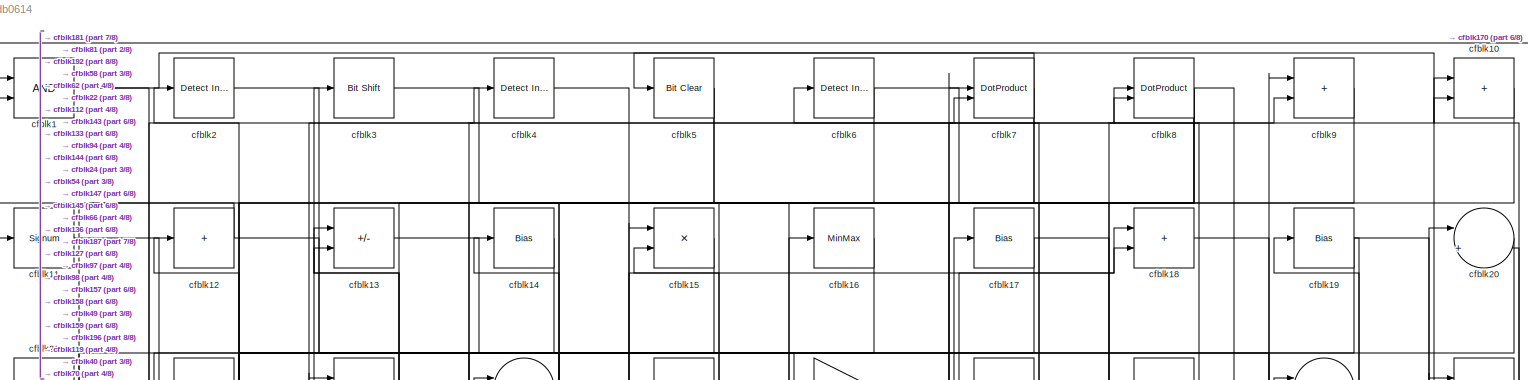
[diagram: root canvas - part 1/8, full width, top band]
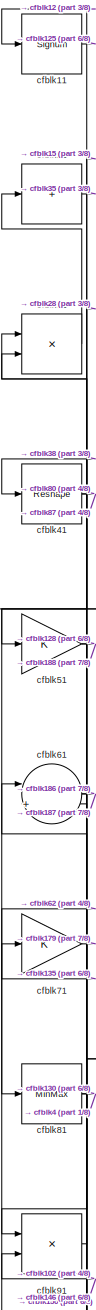
[diagram: root canvas - part 2/8, top left region]
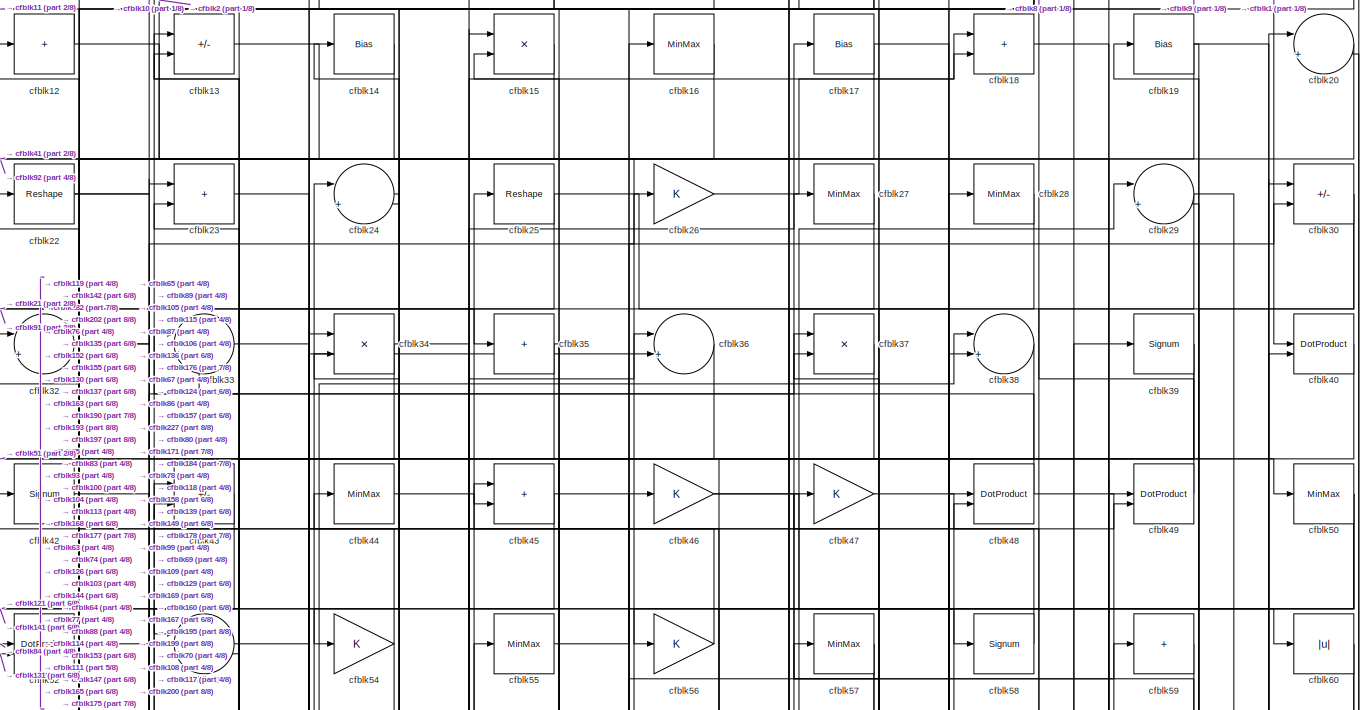
[diagram: root canvas - part 3/8, full width, top band]
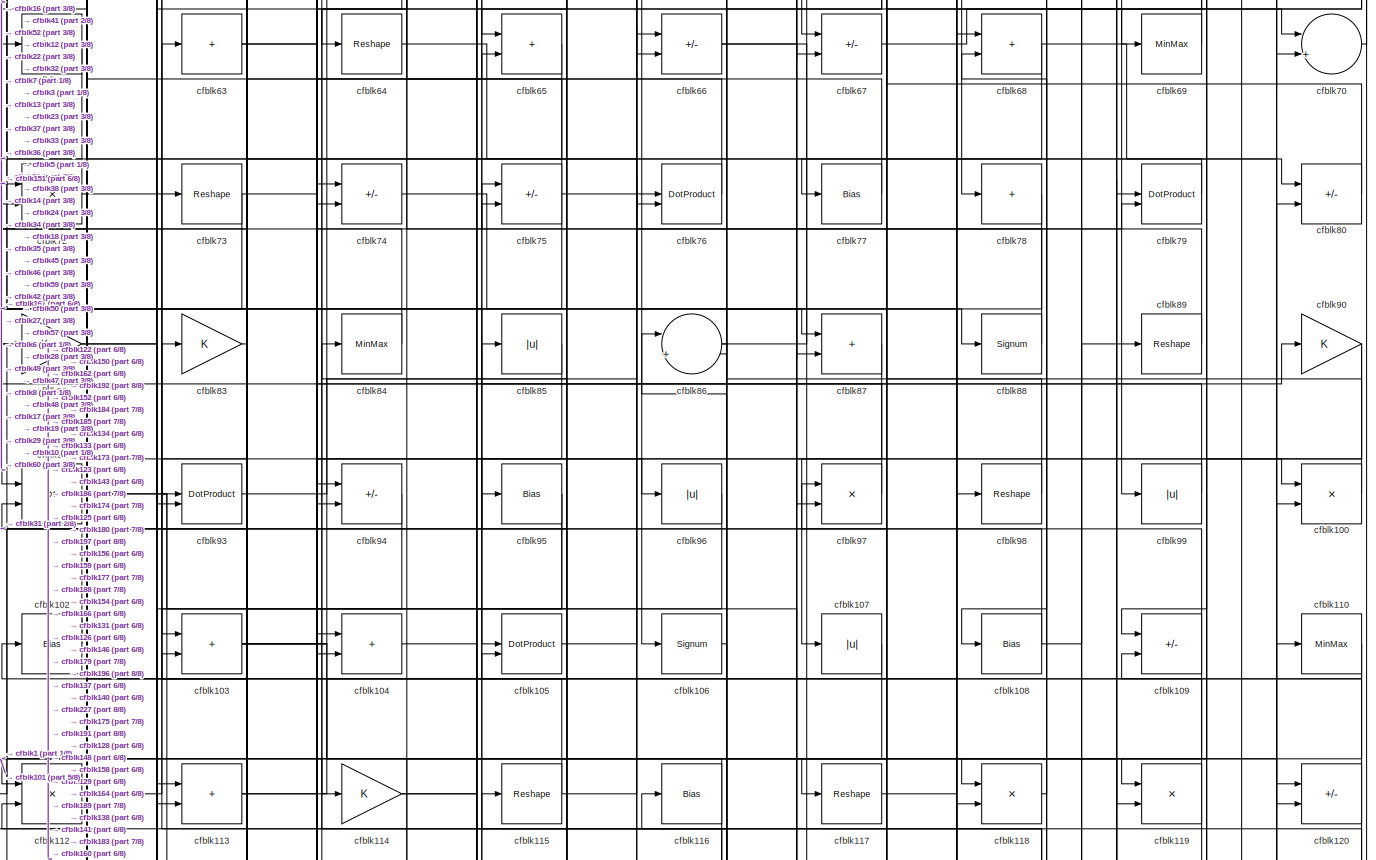
[diagram: root canvas - part 4/8, full width, middle band]
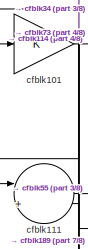
[diagram: root canvas - part 5/8, middle left region]
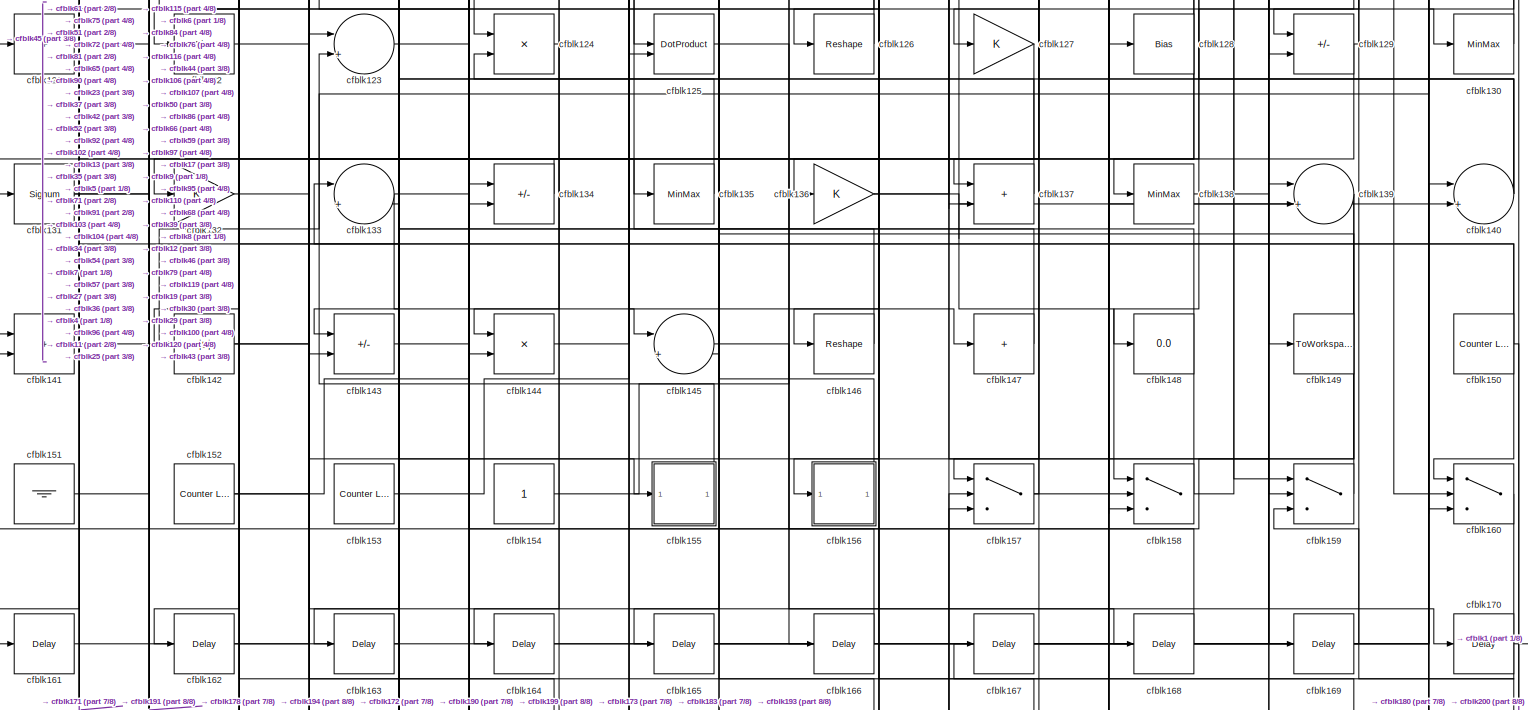
[diagram: root canvas - part 6/8, full width, middle band]
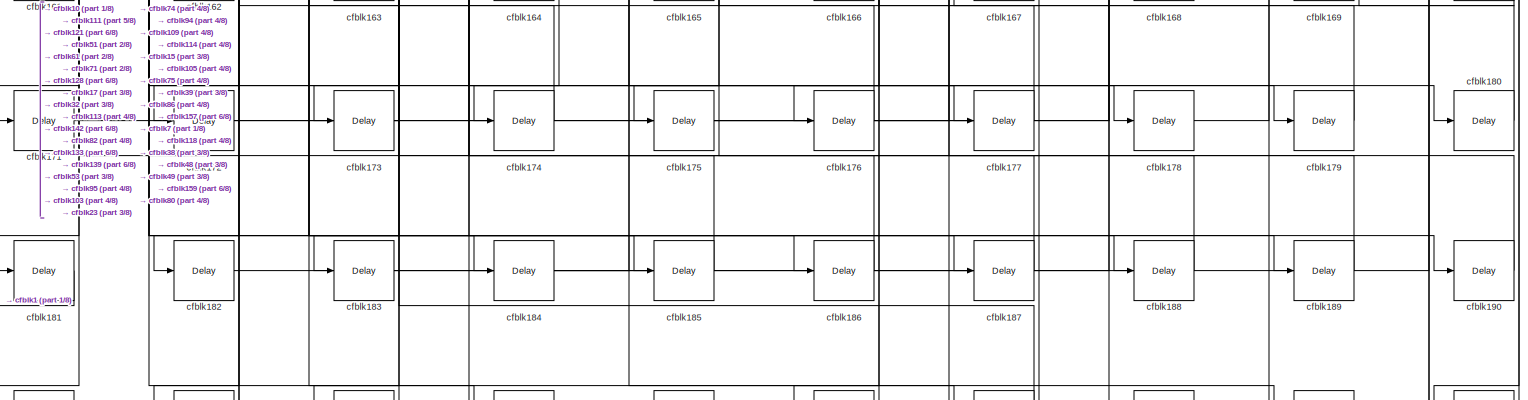
[diagram: root canvas - part 7/8, full width, bottom band]
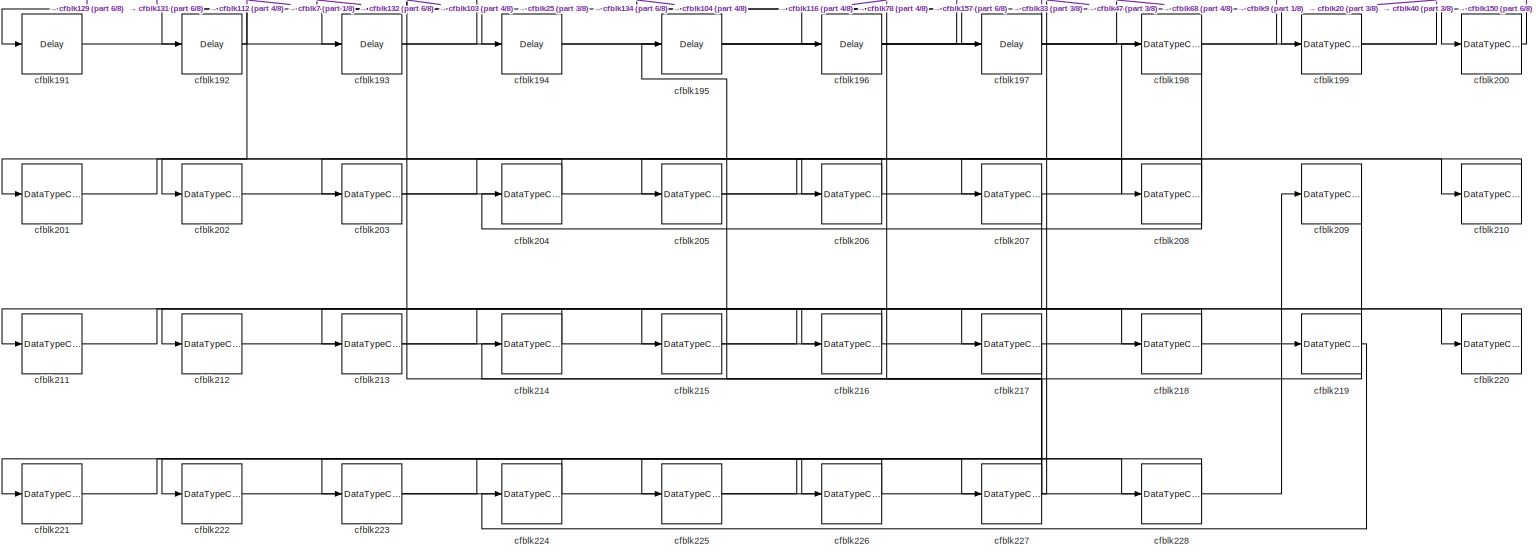
[diagram: root canvas - part 8/8, full width, bottom band]
MODEL slx_dc9ccedb0614
KIND model
CONFIG AbsTol = auto
CONFIG EnableMultiTasking = off
CONFIG FixedStep = auto
CONFIG MaxStep = auto
CONFIG MinStep = auto
CONFIG RelTol = 1e-3
CONFIG SampleTimeConstraint = Unconstrained
CONFIG SolverName = VariableStepAuto
CONFIG StartTime = 0.0
CONFIG StopTime = 10.0
BLOCK [Logic] cfblk1
  AllPortsSameDT = off
  OutDataTypeStr = boolean
BLOCK [Sum] cfblk10
  IconShape = rectangular
BLOCK [Product] cfblk100
  Inputs = */
  RndMeth = Zero
  SaturateOnIntegerOverflow = on
BLOCK [Gain] cfblk101
BLOCK [Bias] cfblk102
  Bias = 0.0
  SaturateOnIntegerOverflow = off
BLOCK [Sum] cfblk103
  IconShape = rectangular
BLOCK [Sum] cfblk104
  IconShape = rectangular
BLOCK [DotProduct] cfblk105
  OutDataTypeStr = Inherit: Inherit via internal rule
BLOCK [Signum] cfblk106
BLOCK [Abs] cfblk107
  SaturateOnIntegerOverflow = off
BLOCK [Bias] cfblk108
  Bias = 0.0
  SaturateOnIntegerOverflow = off
BLOCK [Sum] cfblk109
  IconShape = rectangular
  Inputs = +-
BLOCK [Signum] cfblk11
BLOCK [MinMax] cfblk110
BLOCK [Sum] cfblk111
  Inputs = |++
BLOCK [Product] cfblk112
  Inputs = */
  RndMeth = Zero
  SaturateOnIntegerOverflow = on
BLOCK [Sum] cfblk113
  IconShape = rectangular
BLOCK [Gain] cfblk114
BLOCK [Reshape] cfblk115
BLOCK [Bias] cfblk116
  Bias = 0.0
  SaturateOnIntegerOverflow = off
BLOCK [Reshape] cfblk117
BLOCK [Product] cfblk118
  Inputs = */
  RndMeth = Zero
  SaturateOnIntegerOverflow = on
BLOCK [Product] cfblk119
  Inputs = */
  RndMeth = Zero
  SaturateOnIntegerOverflow = on
BLOCK [Sum] cfblk12
  IconShape = rectangular
  Inputs = +
BLOCK [Sum] cfblk120
  IconShape = rectangular
  Inputs = +-
BLOCK [Sum] cfblk121
  IconShape = rectangular
  Inputs = +
BLOCK [Bias] cfblk122
  Bias = 0.0
  SaturateOnIntegerOverflow = off
BLOCK [Sum] cfblk123
  Inputs = |++
BLOCK [Product] cfblk124
  Inputs = */
  RndMeth = Zero
  SaturateOnIntegerOverflow = on
BLOCK [DotProduct] cfblk125
  OutDataTypeStr = Inherit: Inherit via internal rule
BLOCK [Reshape] cfblk126
BLOCK [Gain] cfblk127
BLOCK [Bias] cfblk128
  Bias = 0.0
  SaturateOnIntegerOverflow = off
BLOCK [Sum] cfblk129
  IconShape = rectangular
  Inputs = +-
BLOCK [Sum] cfblk13
  IconShape = rectangular
  Inputs = +-
BLOCK [MinMax] cfblk130
BLOCK [Signum] cfblk131
BLOCK [Gain] cfblk132
BLOCK [Sum] cfblk133
  Inputs = |++
BLOCK [Sum] cfblk134
  IconShape = rectangular
  Inputs = +-
BLOCK [MinMax] cfblk135
BLOCK [Gain] cfblk136
BLOCK [Sum] cfblk137
  IconShape = rectangular
BLOCK [MinMax] cfblk138
BLOCK [Sum] cfblk139
  Inputs = |++
BLOCK [Bias] cfblk14
  Bias = 0.0
  SaturateOnIntegerOverflow = off
BLOCK [Sum] cfblk140
  Inputs = |++
BLOCK [Sum] cfblk141
  IconShape = rectangular
BLOCK [Abs] cfblk142
  SaturateOnIntegerOverflow = off
BLOCK [Sum] cfblk143
  IconShape = rectangular
  Inputs = +-
BLOCK [Product] cfblk144
  Inputs = */
  RndMeth = Zero
  SaturateOnIntegerOverflow = on
BLOCK [Sum] cfblk145
  Inputs = |++
BLOCK [Reshape] cfblk146
BLOCK [Sum] cfblk147
  IconShape = rectangular
  Inputs = +
BLOCK [Display] cfblk148
  Decimation = 1
BLOCK [ToWorkspace] cfblk149
  MaxDataPoints = inf
  SampleTime = -1
  SaveFormat = Timeseries
  VariableName = simout
BLOCK [Product] cfblk15
  Inputs = */
  RndMeth = Zero
  SaturateOnIntegerOverflow = on
BLOCK [Reference] cfblk150  REF=hdlsllib/Sources/Counter
Limited
  SourceBlock = hdlsllib/Sources/Counter\nLimited
  SourceType = Counter Limited
BLOCK [Ground] cfblk151
BLOCK [Reference] cfblk152  REF=hdlsllib/Sources/Counter
Limited
  SourceBlock = hdlsllib/Sources/Counter\nLimited
  SourceType = Counter Limited
BLOCK [Reference] cfblk153  REF=hdlsllib/Sources/Counter
Limited
  SourceBlock = hdlsllib/Sources/Counter\nLimited
  SourceType = Counter Limited
BLOCK [Constant] cfblk154
  SampleTime = -1
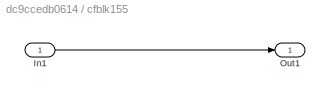
BLOCK [SubSystem] cfblk155
  LibrarySourceBlock = hdlsllib/Ports &\nSubsystems/Subsystem
BLOCK [Inport] cfblk155/In1
BLOCK [Outport] cfblk155/Out1
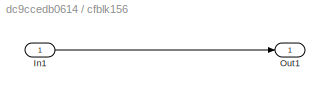
BLOCK [SubSystem] cfblk156
  LibrarySourceBlock = hdlsllib/Ports &\nSubsystems/Subsystem
BLOCK [Inport] cfblk156/In1
BLOCK [Outport] cfblk156/Out1
BLOCK [Switch] cfblk157
  InputSameDT = off
  SaturateOnIntegerOverflow = off
BLOCK [Switch] cfblk158
  InputSameDT = off
  SaturateOnIntegerOverflow = off
BLOCK [Switch] cfblk159
  InputSameDT = off
  SaturateOnIntegerOverflow = off
BLOCK [MinMax] cfblk16
BLOCK [Switch] cfblk160
  InputSameDT = off
  SaturateOnIntegerOverflow = off
BLOCK [Delay] cfblk161
  InputPortMap = u0
  SampleTime = 1
BLOCK [Delay] cfblk162
  InputPortMap = u0
  SampleTime = 1
BLOCK [Delay] cfblk163
  InputPortMap = u0
  SampleTime = 1
BLOCK [Delay] cfblk164
  InputPortMap = u0
  SampleTime = 1
BLOCK [Delay] cfblk165
  InputPortMap = u0
  SampleTime = 1
BLOCK [Delay] cfblk166
  InputPortMap = u0
  SampleTime = 1
BLOCK [Delay] cfblk167
  InputPortMap = u0
  SampleTime = 1
BLOCK [Delay] cfblk168
  InputPortMap = u0
  SampleTime = 1
BLOCK [Delay] cfblk169
  InputPortMap = u0
  SampleTime = 1
BLOCK [Bias] cfblk17
  Bias = 0.0
  SaturateOnIntegerOverflow = off
BLOCK [Delay] cfblk170
  InputPortMap = u0
  SampleTime = 1
BLOCK [Delay] cfblk171
  InputPortMap = u0
  SampleTime = 1
BLOCK [Delay] cfblk172
  InputPortMap = u0
  SampleTime = 1
BLOCK [Delay] cfblk173
  InputPortMap = u0
  SampleTime = 1
BLOCK [Delay] cfblk174
  InputPortMap = u0
  SampleTime = 1
BLOCK [Delay] cfblk175
  InputPortMap = u0
  SampleTime = 1
BLOCK [Delay] cfblk176
  InputPortMap = u0
  SampleTime = 1
BLOCK [Delay] cfblk177
  InputPortMap = u0
  SampleTime = 1
BLOCK [Delay] cfblk178
  InputPortMap = u0
  SampleTime = 1
BLOCK [Delay] cfblk179
  InputPortMap = u0
  SampleTime = 1
BLOCK [Sum] cfblk18
  IconShape = rectangular
BLOCK [Delay] cfblk180
  InputPortMap = u0
  SampleTime = 1
BLOCK [Delay] cfblk181
  InputPortMap = u0
  SampleTime = 1
BLOCK [Delay] cfblk182
  InputPortMap = u0
  SampleTime = 1
BLOCK [Delay] cfblk183
  InputPortMap = u0
  SampleTime = 1
BLOCK [Delay] cfblk184
  InputPortMap = u0
  SampleTime = 1
BLOCK [Delay] cfblk185
  InputPortMap = u0
  SampleTime = 1
BLOCK [Delay] cfblk186
  InputPortMap = u0
  SampleTime = 1
BLOCK [Delay] cfblk187
  InputPortMap = u0
  SampleTime = 1
BLOCK [Delay] cfblk188
  InputPortMap = u0
  SampleTime = 1
BLOCK [Delay] cfblk189
  InputPortMap = u0
  SampleTime = 1
BLOCK [Bias] cfblk19
  Bias = 0.0
  SaturateOnIntegerOverflow = off
BLOCK [Delay] cfblk190
  InputPortMap = u0
  SampleTime = 1
BLOCK [Delay] cfblk191
  InputPortMap = u0
  SampleTime = 1
BLOCK [Delay] cfblk192
  InputPortMap = u0
  SampleTime = 1
BLOCK [Delay] cfblk193
  InputPortMap = u0
  SampleTime = 1
BLOCK [Delay] cfblk194
  InputPortMap = u0
  SampleTime = 1
BLOCK [Delay] cfblk195
  InputPortMap = u0
  SampleTime = 1
BLOCK [Delay] cfblk196
  InputPortMap = u0
  SampleTime = 1
BLOCK [Delay] cfblk197
  InputPortMap = u0
  SampleTime = 1
BLOCK [DataTypeConversion] cfblk198
  RndMeth = Floor
  SaturateOnIntegerOverflow = off
BLOCK [DataTypeConversion] cfblk199
  OutDataTypeStr = uint8
  RndMeth = Floor
  SaturateOnIntegerOverflow = off
BLOCK [Reference] cfblk2  REF=simulink/Logic and Bit
Operations/Detect
Increase
  LibrarySourceBlock = hdlsllib/Logic and Bit\nOperations/Detect\nIncrease
  SourceBlock = simulink/Logic and Bit\nOperations/Detect\nIncrease
  SourceType = Detect Increase
BLOCK [Sum] cfblk20
  Inputs = |++
BLOCK [DataTypeConversion] cfblk200
  OutDataTypeStr = uint8
  RndMeth = Floor
  SaturateOnIntegerOverflow = off
BLOCK [DataTypeConversion] cfblk201
  RndMeth = Floor
  SaturateOnIntegerOverflow = off
BLOCK [DataTypeConversion] cfblk202
  OutDataTypeStr = uint8
  RndMeth = Floor
  SaturateOnIntegerOverflow = off
BLOCK [DataTypeConversion] cfblk203
  RndMeth = Floor
  SaturateOnIntegerOverflow = off
BLOCK [DataTypeConversion] cfblk204
  OutDataTypeStr = uint8
  RndMeth = Floor
  SaturateOnIntegerOverflow = off
BLOCK [DataTypeConversion] cfblk205
  RndMeth = Floor
  SaturateOnIntegerOverflow = off
BLOCK [DataTypeConversion] cfblk206
  OutDataTypeStr = uint8
  RndMeth = Floor
  SaturateOnIntegerOverflow = off
BLOCK [DataTypeConversion] cfblk207
  RndMeth = Floor
  SaturateOnIntegerOverflow = off
BLOCK [DataTypeConversion] cfblk208
  OutDataTypeStr = uint8
  RndMeth = Floor
  SaturateOnIntegerOverflow = off
BLOCK [DataTypeConversion] cfblk209
  RndMeth = Floor
  SaturateOnIntegerOverflow = off
BLOCK [Sum] cfblk21
  IconShape = rectangular
  Inputs = +
BLOCK [DataTypeConversion] cfblk210
  OutDataTypeStr = uint8
  RndMeth = Floor
  SaturateOnIntegerOverflow = off
BLOCK [DataTypeConversion] cfblk211
  RndMeth = Floor
  SaturateOnIntegerOverflow = off
BLOCK [DataTypeConversion] cfblk212
  OutDataTypeStr = uint8
  RndMeth = Floor
  SaturateOnIntegerOverflow = off
BLOCK [DataTypeConversion] cfblk213
  RndMeth = Floor
  SaturateOnIntegerOverflow = off
BLOCK [DataTypeConversion] cfblk214
  OutDataTypeStr = uint8
  RndMeth = Floor
  SaturateOnIntegerOverflow = off
BLOCK [DataTypeConversion] cfblk215
  RndMeth = Floor
  SaturateOnIntegerOverflow = off
BLOCK [DataTypeConversion] cfblk216
  OutDataTypeStr = uint8
  RndMeth = Floor
  SaturateOnIntegerOverflow = off
BLOCK [DataTypeConversion] cfblk217
  RndMeth = Floor
  SaturateOnIntegerOverflow = off
BLOCK [DataTypeConversion] cfblk218
  OutDataTypeStr = uint8
  RndMeth = Floor
  SaturateOnIntegerOverflow = off
BLOCK [DataTypeConversion] cfblk219
  RndMeth = Floor
  SaturateOnIntegerOverflow = off
BLOCK [Reshape] cfblk22
BLOCK [DataTypeConversion] cfblk220
  OutDataTypeStr = uint8
  RndMeth = Floor
  SaturateOnIntegerOverflow = off
BLOCK [DataTypeConversion] cfblk221
  RndMeth = Floor
  SaturateOnIntegerOverflow = off
BLOCK [DataTypeConversion] cfblk222
  OutDataTypeStr = uint8
  RndMeth = Floor
  SaturateOnIntegerOverflow = off
BLOCK [DataTypeConversion] cfblk223
  RndMeth = Floor
  SaturateOnIntegerOverflow = off
BLOCK [DataTypeConversion] cfblk224
  OutDataTypeStr = uint8
  RndMeth = Floor
  SaturateOnIntegerOverflow = off
BLOCK [DataTypeConversion] cfblk225
  RndMeth = Floor
  SaturateOnIntegerOverflow = off
BLOCK [DataTypeConversion] cfblk226
  OutDataTypeStr = uint8
  RndMeth = Floor
  SaturateOnIntegerOverflow = off
BLOCK [DataTypeConversion] cfblk227
  RndMeth = Floor
  SaturateOnIntegerOverflow = off
BLOCK [DataTypeConversion] cfblk228
  OutDataTypeStr = uint8
  RndMeth = Floor
  SaturateOnIntegerOverflow = off
BLOCK [Sum] cfblk23
  IconShape = rectangular
BLOCK [Sum] cfblk24
  Inputs = |++
BLOCK [Reshape] cfblk25
BLOCK [Gain] cfblk26
BLOCK [MinMax] cfblk27
BLOCK [MinMax] cfblk28
BLOCK [Sum] cfblk29
  Inputs = |++
BLOCK [Reference] cfblk3  REF=hdlsllib/Logic and Bit
Operations/Bit Shift
  SourceBlock = hdlsllib/Logic and Bit\nOperations/Bit Shift
  SourceType = Bit Shift
BLOCK [Sum] cfblk30
  IconShape = rectangular
  Inputs = +-
BLOCK [Product] cfblk31
  Inputs = */
  RndMeth = Zero
  SaturateOnIntegerOverflow = on
BLOCK [Sum] cfblk32
  Inputs = |++
BLOCK [Sum] cfblk33
  Inputs = |++
BLOCK [Product] cfblk34
  Inputs = */
  RndMeth = Zero
  SaturateOnIntegerOverflow = on
BLOCK [Sum] cfblk35
  IconShape = rectangular
  Inputs = +
BLOCK [Sum] cfblk36
  Inputs = |++
BLOCK [Product] cfblk37
  Inputs = */
  RndMeth = Zero
  SaturateOnIntegerOverflow = on
BLOCK [Sum] cfblk38
  Inputs = |++
BLOCK [Signum] cfblk39
BLOCK [Reference] cfblk4  REF=simulink/Logic and Bit
Operations/Detect
Increase
  LibrarySourceBlock = hdlsllib/Logic and Bit\nOperations/Detect\nIncrease
  SourceBlock = simulink/Logic and Bit\nOperations/Detect\nIncrease
  SourceType = Detect Increase
BLOCK [DotProduct] cfblk40
  OutDataTypeStr = Inherit: Inherit via internal rule
BLOCK [Reshape] cfblk41
BLOCK [Signum] cfblk42
BLOCK [Sum] cfblk43
  IconShape = rectangular
  Inputs = +-
BLOCK [MinMax] cfblk44
BLOCK [Sum] cfblk45
  IconShape = rectangular
BLOCK [Gain] cfblk46
BLOCK [Gain] cfblk47
BLOCK [DotProduct] cfblk48
  OutDataTypeStr = Inherit: Inherit via internal rule
BLOCK [DotProduct] cfblk49
  OutDataTypeStr = Inherit: Inherit via internal rule
BLOCK [Reference] cfblk5  REF=simulink/Logic and Bit
Operations/Bit Clear
  LibrarySourceBlock = hdlsllib/Logic and Bit\nOperations/Bit Clear
  SourceBlock = simulink/Logic and Bit\nOperations/Bit Clear
  SourceType = Bit Clear
BLOCK [MinMax] cfblk50
BLOCK [Gain] cfblk51
BLOCK [DotProduct] cfblk52
  OutDataTypeStr = Inherit: Inherit via internal rule
BLOCK [Sum] cfblk53
  Inputs = |++
BLOCK [Gain] cfblk54
BLOCK [MinMax] cfblk55
BLOCK [Gain] cfblk56
BLOCK [MinMax] cfblk57
BLOCK [Signum] cfblk58
BLOCK [Sum] cfblk59
  IconShape = rectangular
  Inputs = +
BLOCK [Reference] cfblk6  REF=simulink/Logic and Bit
Operations/Detect
Increase
  LibrarySourceBlock = hdlsllib/Logic and Bit\nOperations/Detect\nIncrease
  SourceBlock = simulink/Logic and Bit\nOperations/Detect\nIncrease
  SourceType = Detect Increase
BLOCK [Abs] cfblk60
  SaturateOnIntegerOverflow = off
BLOCK [Sum] cfblk61
  Inputs = |++
BLOCK [MinMax] cfblk62
BLOCK [Sum] cfblk63
  IconShape = rectangular
  Inputs = +
BLOCK [Reshape] cfblk64
BLOCK [Sum] cfblk65
  IconShape = rectangular
BLOCK [Sum] cfblk66
  IconShape = rectangular
  Inputs = +-
BLOCK [Sum] cfblk67
  IconShape = rectangular
  Inputs = +-
BLOCK [Sum] cfblk68
  IconShape = rectangular
BLOCK [MinMax] cfblk69
BLOCK [DotProduct] cfblk7
  OutDataTypeStr = Inherit: Inherit via internal rule
BLOCK [Sum] cfblk70
  Inputs = |++
BLOCK [Gain] cfblk71
BLOCK [Product] cfblk72
  Inputs = */
  RndMeth = Zero
  SaturateOnIntegerOverflow = on
BLOCK [Reshape] cfblk73
BLOCK [Sum] cfblk74
  IconShape = rectangular
  Inputs = +-
BLOCK [Sum] cfblk75
  IconShape = rectangular
  Inputs = +-
BLOCK [DotProduct] cfblk76
  OutDataTypeStr = Inherit: Inherit via internal rule
BLOCK [Bias] cfblk77
  Bias = 0.0
  SaturateOnIntegerOverflow = off
BLOCK [Sum] cfblk78
  IconShape = rectangular
  Inputs = +
BLOCK [DotProduct] cfblk79
  OutDataTypeStr = Inherit: Inherit via internal rule
BLOCK [DotProduct] cfblk8
  OutDataTypeStr = Inherit: Inherit via internal rule
BLOCK [Sum] cfblk80
  IconShape = rectangular
  Inputs = +-
BLOCK [MinMax] cfblk81
BLOCK [Gain] cfblk82
BLOCK [Gain] cfblk83
BLOCK [MinMax] cfblk84
BLOCK [Abs] cfblk85
  SaturateOnIntegerOverflow = off
BLOCK [Sum] cfblk86
  Inputs = |++
BLOCK [Sum] cfblk87
  IconShape = rectangular
BLOCK [Signum] cfblk88
BLOCK [Reshape] cfblk89
BLOCK [Sum] cfblk9
  IconShape = rectangular
BLOCK [Gain] cfblk90
BLOCK [Product] cfblk91
  Inputs = */
  RndMeth = Zero
  SaturateOnIntegerOverflow = on
BLOCK [Product] cfblk92
  Inputs = */
  RndMeth = Zero
  SaturateOnIntegerOverflow = on
BLOCK [DotProduct] cfblk93
  OutDataTypeStr = Inherit: Inherit via internal rule
BLOCK [Sum] cfblk94
  IconShape = rectangular
  Inputs = +-
BLOCK [Bias] cfblk95
  Bias = 0.0
  SaturateOnIntegerOverflow = off
BLOCK [Abs] cfblk96
  SaturateOnIntegerOverflow = off
BLOCK [Product] cfblk97
  Inputs = */
  RndMeth = Zero
  SaturateOnIntegerOverflow = on
BLOCK [Reshape] cfblk98
BLOCK [Abs] cfblk99
  SaturateOnIntegerOverflow = off
LINE cfblk100:1 -> cfblk42:1
LINE cfblk101:1 -> cfblk114:1
LINE cfblk102:1 -> cfblk31:1
NET cfblk103:1 -> cfblk120:2, cfblk129:2, cfblk189:1, cfblk38:1
LINE cfblk104:1 -> cfblk197:1
LINE cfblk105:1 -> cfblk16:1
LINE cfblk106:1 -> cfblk146:1
LINE cfblk107:1 -> cfblk156:1
NET cfblk108:1 -> cfblk83:1, cfblk89:1
NET cfblk109:1 -> cfblk174:1, cfblk72:2
LINE cfblk10:1 -> cfblk181:1
NET cfblk110:1 -> cfblk109:2, cfblk148:1
LINE cfblk111:1 -> cfblk55:1
LINE cfblk112:1 -> cfblk3:1
NET cfblk113:1 -> cfblk28:1, cfblk49:2
NET cfblk114:1 -> cfblk180:1, cfblk18:2
NET cfblk115:1 -> cfblk22:1, cfblk59:1
NET cfblk116:1 -> cfblk112:1, cfblk131:1
LINE cfblk117:1 -> cfblk98:1
LINE cfblk118:1 -> cfblk48:2
NET cfblk119:1 -> cfblk12:1, cfblk138:1
LINE cfblk11:1 -> cfblk125:1
NET cfblk120:1 -> cfblk160:3, cfblk63:1
LINE cfblk121:1 -> cfblk178:1
LINE cfblk122:1 -> cfblk170:1
LINE cfblk123:1 -> cfblk75:1
LINE cfblk124:1 -> cfblk164:1
LINE cfblk125:1 -> cfblk166:1
LINE cfblk126:1 -> cfblk44:1
LINE cfblk127:1 -> cfblk143:2
NET cfblk128:1 -> cfblk171:1, cfblk172:1, cfblk61:2, cfblk95:1
NET cfblk129:1 -> cfblk191:1, cfblk19:1
NET cfblk12:1 -> cfblk11:1, cfblk149:1
LINE cfblk130:1 -> cfblk43:1
NET cfblk131:1 -> cfblk194:1, cfblk52:2
LINE cfblk132:1 -> cfblk199:1
NET cfblk133:1 -> cfblk145:1, cfblk7:2
LINE cfblk134:1 -> cfblk132:1
LINE cfblk135:1 -> cfblk71:1
NET cfblk136:1 -> cfblk158:1, cfblk8:2
LINE cfblk137:1 -> cfblk43:2
LINE cfblk138:1 -> cfblk169:1
NET cfblk139:1 -> cfblk141:1, cfblk183:1
LINE cfblk13:1 -> cfblk106:1
NET cfblk140:1 -> cfblk124:2, cfblk68:2, cfblk97:1
LINE cfblk141:1 -> cfblk110:1
NET cfblk142:1 -> cfblk190:1, cfblk37:1
LINE cfblk143:1 -> cfblk90:1
LINE cfblk144:1 -> cfblk36:1
LINE cfblk145:1 -> cfblk168:1
LINE cfblk146:1 -> cfblk91:2
LINE cfblk147:1 -> cfblk25:1
LINE cfblk14:1 -> cfblk74:2
NET cfblk150:1 -> cfblk160:1, cfblk200:1, cfblk61:1, cfblk92:2
LINE cfblk151:1 -> cfblk72:1
NET cfblk152:1 -> cfblk104:2, cfblk23:1
LINE cfblk153:1 -> cfblk27:1
LINE cfblk154:1 -> cfblk76:1
LINE cfblk155/In1:1 -> cfblk155/Out1:1
LINE cfblk155:1 -> cfblk123:2
LINE cfblk156/In1:1 -> cfblk156/Out1:1
LINE cfblk156:1 -> cfblk84:1
NET cfblk157:1 -> cfblk37:2, cfblk9:2
NET cfblk158:1 -> cfblk102:1, cfblk39:1
LINE cfblk159:1 -> cfblk115:1
LINE cfblk15:1 -> cfblk41:1
LINE cfblk160:1 -> cfblk167:1
LINE cfblk161:1 -> cfblk123:1
LINE cfblk162:1 -> cfblk100:2
LINE cfblk163:1 -> cfblk13:2
LINE cfblk164:1 -> cfblk79:1
LINE cfblk165:1 -> cfblk140:1
LINE cfblk166:1 -> cfblk66:1
LINE cfblk167:1 -> cfblk30:1
LINE cfblk168:1 -> cfblk34:1
LINE cfblk169:1 -> cfblk29:2
LINE cfblk16:1 -> cfblk92:1
LINE cfblk170:1 -> cfblk1:1
LINE cfblk171:1 -> cfblk48:1
LINE cfblk172:1 -> cfblk157:2
LINE cfblk173:1 -> cfblk133:1
LINE cfblk174:1 -> cfblk113:1
LINE cfblk175:1 -> cfblk118:2
LINE cfblk176:1 -> cfblk32:2
LINE cfblk177:1 -> cfblk105:2
LINE cfblk178:1 -> cfblk49:1
LINE cfblk179:1 -> cfblk86:1
NET cfblk17:1 -> cfblk139:2, cfblk182:1
LINE cfblk180:1 -> cfblk159:3
LINE cfblk181:1 -> cfblk1:2
LINE cfblk182:1 -> cfblk15:1
LINE cfblk183:1 -> cfblk80:2
LINE cfblk184:1 -> cfblk38:2
LINE cfblk185:1 -> cfblk94:1
LINE cfblk186:1 -> cfblk74:1
LINE cfblk187:1 -> cfblk7:1
LINE cfblk188:1 -> cfblk75:2
LINE cfblk189:1 -> cfblk111:2
LINE cfblk18:1 -> cfblk60:1
LINE cfblk190:1 -> cfblk53:2
LINE cfblk191:1 -> cfblk68:1
LINE cfblk192:1 -> cfblk112:2
LINE cfblk193:1 -> cfblk134:2
LINE cfblk194:1 -> cfblk157:3
LINE cfblk195:1 -> cfblk40:2
LINE cfblk196:1 -> cfblk9:1
LINE cfblk197:1 -> cfblk33:1
LINE cfblk198:1 -> cfblk204:1
LINE cfblk199:1 -> cfblk20:1
NET cfblk19:1 -> cfblk109:1, cfblk142:1, cfblk70:2
NET cfblk1:1 -> cfblk119:2, cfblk40:1
LINE cfblk200:1 -> cfblk20:2
LINE cfblk201:1 -> cfblk206:1
LINE cfblk202:1 -> cfblk198:1
LINE cfblk203:1 -> cfblk208:1
LINE cfblk204:1 -> cfblk201:1
LINE cfblk205:1 -> cfblk210:1
LINE cfblk206:1 -> cfblk203:1
LINE cfblk207:1 -> cfblk212:1
LINE cfblk208:1 -> cfblk205:1
LINE cfblk209:1 -> cfblk214:1
LINE cfblk20:1 -> cfblk202:1
LINE cfblk210:1 -> cfblk207:1
LINE cfblk211:1 -> cfblk216:1
LINE cfblk212:1 -> cfblk209:1
LINE cfblk213:1 -> cfblk218:1
LINE cfblk214:1 -> cfblk211:1
LINE cfblk215:1 -> cfblk220:1
LINE cfblk216:1 -> cfblk213:1
LINE cfblk217:1 -> cfblk222:1
LINE cfblk218:1 -> cfblk215:1
LINE cfblk219:1 -> cfblk224:1
LINE cfblk21:1 -> cfblk35:1
LINE cfblk220:1 -> cfblk217:1
LINE cfblk221:1 -> cfblk226:1
LINE cfblk222:1 -> cfblk219:1
LINE cfblk223:1 -> cfblk228:1
LINE cfblk224:1 -> cfblk221:1
LINE cfblk225:1 -> cfblk227:1
LINE cfblk226:1 -> cfblk223:1
NET cfblk227:1 -> cfblk103:2, cfblk116:1, cfblk195:1, cfblk47:1
LINE cfblk228:1 -> cfblk225:1
NET cfblk22:1 -> cfblk10:1, cfblk69:1
LINE cfblk23:1 -> cfblk177:1
LINE cfblk24:1 -> cfblk64:1
NET cfblk25:1 -> cfblk158:2, cfblk193:1
LINE cfblk26:1 -> cfblk18:1
LINE cfblk27:1 -> cfblk67:2
LINE cfblk28:1 -> cfblk91:1
NET cfblk29:1 -> cfblk118:1, cfblk160:2
LINE cfblk2:1 -> cfblk24:2
NET cfblk30:1 -> cfblk129:1, cfblk157:1
LINE cfblk31:1 -> cfblk21:1
NET cfblk32:1 -> cfblk26:1, cfblk50:1
LINE cfblk33:1 -> cfblk104:1
NET cfblk34:1 -> cfblk111:1, cfblk58:1
NET cfblk35:1 -> cfblk163:1, cfblk65:1
LINE cfblk36:1 -> cfblk165:1
LINE cfblk37:1 -> cfblk93:1
LINE cfblk38:1 -> cfblk51:1
NET cfblk39:1 -> cfblk175:1, cfblk176:1
LINE cfblk3:1 -> cfblk66:2
LINE cfblk40:1 -> cfblk53:1
NET cfblk41:1 -> cfblk80:1, cfblk87:1
LINE cfblk42:1 -> cfblk155:1
LINE cfblk43:1 -> cfblk141:2
LINE cfblk44:1 -> cfblk45:2
NET cfblk45:1 -> cfblk121:1, cfblk87:2
NET cfblk46:1 -> cfblk139:1, cfblk67:1
LINE cfblk47:1 -> cfblk78:1
NET cfblk48:1 -> cfblk33:2, cfblk99:1
LINE cfblk49:1 -> cfblk8:1
LINE cfblk4:1 -> cfblk147:1
NET cfblk50:1 -> cfblk136:1, cfblk56:1, cfblk93:2
NET cfblk51:1 -> cfblk128:1, cfblk188:1
LINE cfblk52:1 -> cfblk135:1
LINE cfblk53:1 -> cfblk100:1
NET cfblk54:1 -> cfblk144:2, cfblk24:1
LINE cfblk55:1 -> cfblk30:2
LINE cfblk56:1 -> cfblk15:2
NET cfblk57:1 -> cfblk124:1, cfblk86:2
LINE cfblk58:1 -> cfblk2:1
LINE cfblk59:1 -> cfblk137:1
NET cfblk5:1 -> cfblk143:1, cfblk94:2
NET cfblk60:1 -> cfblk108:1, cfblk117:1
NET cfblk61:1 -> cfblk186:1, cfblk187:1
LINE cfblk62:1 -> cfblk81:1
NET cfblk63:1 -> cfblk36:2, cfblk96:1
LINE cfblk64:1 -> cfblk76:2
LINE cfblk65:1 -> cfblk162:1
NET cfblk66:1 -> cfblk140:2, cfblk159:2
LINE cfblk67:1 -> cfblk70:1
NET cfblk68:1 -> cfblk120:1, cfblk133:2
LINE cfblk69:1 -> cfblk17:1
NET cfblk6:1 -> cfblk145:2, cfblk158:3
LINE cfblk70:1 -> cfblk10:2
LINE cfblk71:1 -> cfblk179:1
LINE cfblk72:1 -> cfblk73:1
NET cfblk73:1 -> cfblk101:1, cfblk65:2
LINE cfblk74:1 -> cfblk88:1
NET cfblk75:1 -> cfblk13:1, cfblk161:1, cfblk79:2
LINE cfblk76:1 -> cfblk32:1
LINE cfblk77:1 -> cfblk14:1
LINE cfblk78:1 -> cfblk196:1
LINE cfblk79:1 -> cfblk77:1
NET cfblk7:1 -> cfblk192:1, cfblk5:1, cfblk62:1
LINE cfblk80:1 -> cfblk57:1
NET cfblk81:1 -> cfblk130:1, cfblk4:1
NET cfblk82:1 -> cfblk184:1, cfblk185:1
LINE cfblk83:1 -> cfblk23:2
LINE cfblk84:1 -> cfblk52:1
LINE cfblk85:1 -> cfblk105:1
NET cfblk86:1 -> cfblk126:1, cfblk29:1
LINE cfblk87:1 -> cfblk107:1
LINE cfblk88:1 -> cfblk34:2
LINE cfblk89:1 -> cfblk45:1
NET cfblk8:1 -> cfblk127:1, cfblk144:1, cfblk159:1, cfblk97:2
NET cfblk90:1 -> cfblk119:1, cfblk122:1
LINE cfblk91:1 -> cfblk31:2
NET cfblk92:1 -> cfblk134:1, cfblk137:2
LINE cfblk93:1 -> cfblk46:1
LINE cfblk94:1 -> cfblk103:1
NET cfblk95:1 -> cfblk113:2, cfblk173:1
LINE cfblk96:1 -> cfblk125:2
LINE cfblk97:1 -> cfblk82:1
LINE cfblk98:1 -> cfblk6:1
LINE cfblk99:1 -> cfblk85:1
LINE cfblk9:1 -> cfblk54:1
note: NET lines group one-source signal fan-out (src -> all destinations, sorted); 1:1 wires keep LINE
